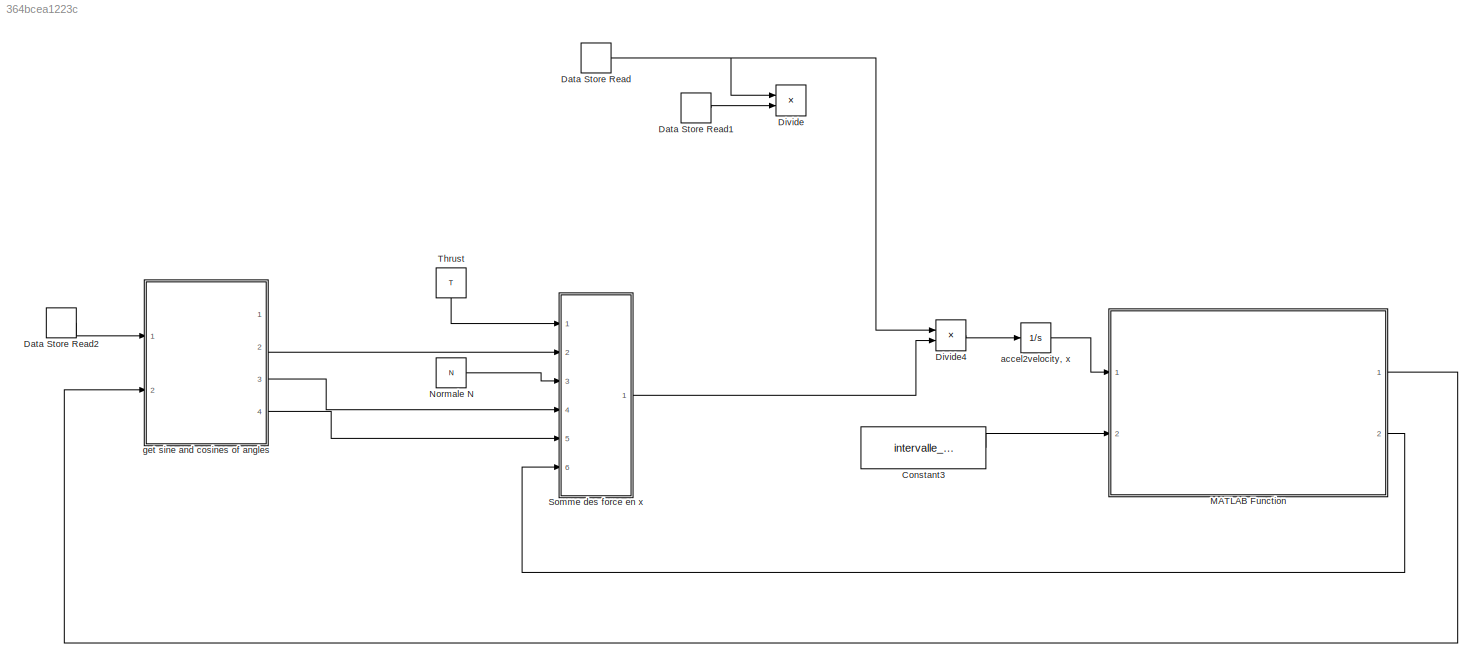
MODEL slx_364bcea1223c
KIND model
CONFIG AbsTol = auto
CONFIG FixedStep = .01
CONFIG MaxStep = auto
CONFIG MinStep = auto
CONFIG RelTol = 1e-3
CONFIG SampleTimeConstraint = Unconstrained
CONFIG Solver = ode4
CONFIG SolverMode = Auto
CONFIG SolverName = ode4
CONFIG StartTime = 0.0
CONFIG StopTime = 10.0
WORKSPACE source: MATLAB code (in-file)
WORKSPACE code: load test3.mat
WORKSPACE geometry = StructHullGeometry('Cedarville')
WORKSPACE code: m.InitialValue = 'geometry.m';
WORKSPACE code: L.InitialValue = 'geometry.L';
WORKSPACE code: LCG.InitialValue = 'geometry.LCG';
WORKSPACE code: VCG.InitialValue = 'geometry.VCG';
WORKSPACE code: b.InitialValue = 'geometry.b';
WORKSPACE code: beta.InitialValue = 'geometry.beta';
WORKSPACE code: a.InitialValue = 'geometry.a';
WORKSPACE code: f.InitialValue = 'geometry.f';
WORKSPACE code: epsilon.InitialValue = 'geometry.epsilon';
WORKSPACE code: g.InitialValue = '9.81';
WORKSPACE code: rho.InitialValue = '1000';
WORKSPACE code: clear geometry
BLOCK [Constant] Constant3
  Value = intervalle_tau
  VectorParams1D = off
BLOCK [DataStoreRead] Data Store Read
  DataStoreName = m
  Ports = [0, 1]
BLOCK [DataStoreRead] Data Store Read1
  DataStoreName = g
  Ports = [0, 1]
BLOCK [DataStoreRead] Data Store Read2
  DataStoreName = epsilon
  Ports = [0, 1]
BLOCK [Product] Divide
  InputSameDT = off
  Inputs = **
  OutDataTypeStr = Inherit: Inherit via internal rule
  Ports = [2, 1]
  RndMeth = Floor
  SaturateOnIntegerOverflow = off
BLOCK [Product] Divide4
  InputSameDT = off
  Inputs = /*
  OutDataTypeStr = Inherit: Inherit via internal rule
  Ports = [2, 1]
  RndMeth = Floor
  SaturateOnIntegerOverflow = off
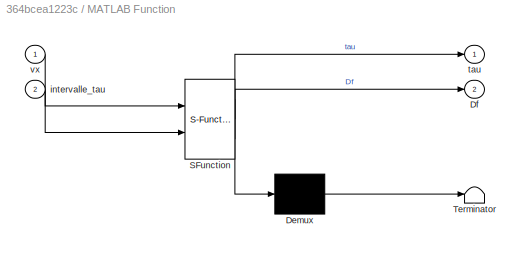
BLOCK [SubSystem] MATLAB Function
  ErrorFcn = Stateflow.Translate.translate
  PermitHierarchicalResolution = ExplicitOnly
  Ports = [2, 2]
  RequestExecContextInheritance = off
  SFBlockType = MATLAB Function
  TreatAsAtomicUnit = on
BLOCK [Demux] MATLAB Function/ Demux 
  Outputs = 1
  Ports = [1, 1]
BLOCK [S-Function] MATLAB Function/ SFunction 
  EnableBusSupport = on
  FunctionName = sf_sfun
  PortCounts = [2 3]
  Ports = [2, 3]
  Tag = Stateflow S-Function Simulink_Accel 2
BLOCK [Terminator] MATLAB Function/ Terminator 
BLOCK [Outport] MATLAB Function/Df
  IconDisplay = Port number
  Port = 2
BLOCK [Inport] MATLAB Function/intervalle_tau
  IconDisplay = Port number
  Port = 2
BLOCK [Outport] MATLAB Function/tau
  IconDisplay = Port number
BLOCK [Inport] MATLAB Function/vx
  IconDisplay = Port number
BLOCK [Constant] Normale N
  Value = N
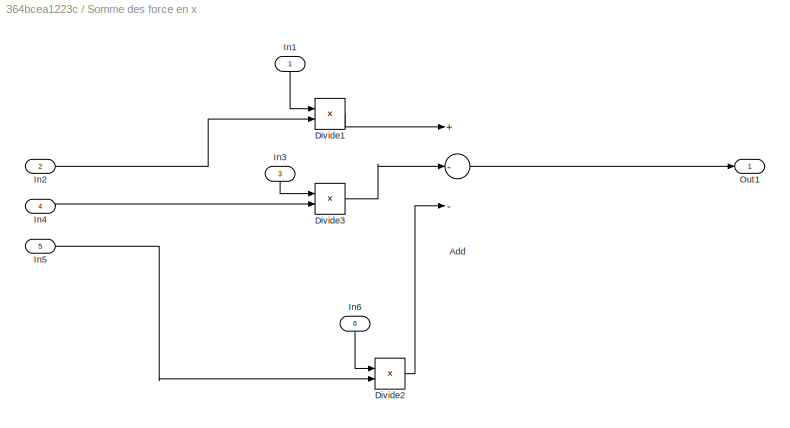
BLOCK [SubSystem] Somme des force en x
  Ports = [6, 1]
  RequestExecContextInheritance = off
BLOCK [Sum] Somme des force en x/Add
  InputSameDT = off
  Inputs = +--
  OutDataTypeStr = Inherit: Inherit via internal rule
  Ports = [3, 1]
  SaturateOnIntegerOverflow = off
BLOCK [Product] Somme des force en x/Divide1
  InputSameDT = off
  Inputs = **
  OutDataTypeStr = Inherit: Inherit via internal rule
  Ports = [2, 1]
  RndMeth = Floor
  SaturateOnIntegerOverflow = off
BLOCK [Product] Somme des force en x/Divide2
  InputSameDT = off
  Inputs = **
  OutDataTypeStr = Inherit: Inherit via internal rule
  Ports = [2, 1]
  RndMeth = Floor
  SaturateOnIntegerOverflow = off
BLOCK [Product] Somme des force en x/Divide3
  InputSameDT = off
  Inputs = **
  OutDataTypeStr = Inherit: Inherit via internal rule
  Ports = [2, 1]
  RndMeth = Floor
  SaturateOnIntegerOverflow = off
BLOCK [Inport] Somme des force en x/In1
  IconDisplay = Port number
BLOCK [Inport] Somme des force en x/In2
  IconDisplay = Port number
  Port = 2
BLOCK [Inport] Somme des force en x/In3
  IconDisplay = Port number
  Port = 3
BLOCK [Inport] Somme des force en x/In4
  IconDisplay = Port number
  Port = 4
BLOCK [Inport] Somme des force en x/In5
  IconDisplay = Port number
  Port = 5
BLOCK [Inport] Somme des force en x/In6
  IconDisplay = Port number
  Port = 6
BLOCK [Outport] Somme des force en x/Out1
  IconDisplay = Port number
BLOCK [Constant] Thrust
  Value = T
BLOCK [Integrator] accel2velocity, x
  InitialCondition = v0x
  Ports = [1, 1]
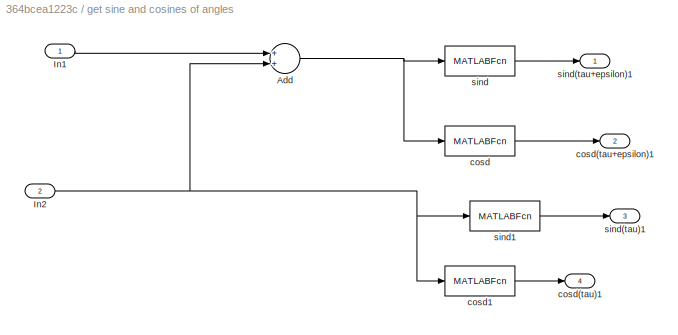
BLOCK [SubSystem] get sine and cosines of angles
  Ports = [2, 4]
  RequestExecContextInheritance = off
BLOCK [Sum] get sine and cosines of angles/Add
  InputSameDT = off
  OutDataTypeStr = Inherit: Inherit via internal rule
  Ports = [2, 1]
  SaturateOnIntegerOverflow = off
BLOCK [Inport] get sine and cosines of angles/In1
  IconDisplay = Port number
BLOCK [Inport] get sine and cosines of angles/In2
  IconDisplay = Port number
  Port = 2
BLOCK [MATLABFcn] get sine and cosines of angles/cosd
  MATLABFcn = cosd
  Ports = [1, 1]
BLOCK [Outport] get sine and cosines of angles/cosd(tau)1
  IconDisplay = Port number
  Port = 4
BLOCK [Outport] get sine and cosines of angles/cosd(tau+epsilon)1
  IconDisplay = Port number
  Port = 2
BLOCK [MATLABFcn] get sine and cosines of angles/cosd1
  MATLABFcn = cosd
  Ports = [1, 1]
BLOCK [MATLABFcn] get sine and cosines of angles/sind
  MATLABFcn = sind
  Ports = [1, 1]
BLOCK [Outport] get sine and cosines of angles/sind(tau)1
  IconDisplay = Port number
  Port = 3
BLOCK [Outport] get sine and cosines of angles/sind(tau+epsilon)1
  IconDisplay = Port number
BLOCK [MATLABFcn] get sine and cosines of angles/sind1
  MATLABFcn = sind
  Ports = [1, 1]
LINE Constant3:1 -> MATLAB Function:2
LINE Data Store Read1:1 -> Divide:2
LINE Data Store Read2:1 -> get sine and cosines of angles:1
NET Data Store Read:1 -> Divide4:1, Divide:1
LINE Divide4:1 -> accel2velocity, x:1
LINE MATLAB Function:1 -> get sine and cosines of angles:2
LINE MATLAB Function:2 -> Somme des force en x:6
LINE Normale N:1 -> Somme des force en x:3
LINE Somme des force en x/Add:1 -> Somme des force en x/Out1:1
LINE Somme des force en x/Divide1:1 -> Somme des force en x/Add:1
LINE Somme des force en x/Divide2:1 -> Somme des force en x/Add:3
LINE Somme des force en x/Divide3:1 -> Somme des force en x/Add:2
LINE Somme des force en x/In1:1 -> Somme des force en x/Divide1:1
LINE Somme des force en x/In2:1 -> Somme des force en x/Divide1:2
LINE Somme des force en x/In3:1 -> Somme des force en x/Divide3:1
LINE Somme des force en x/In4:1 -> Somme des force en x/Divide3:2
LINE Somme des force en x/In5:1 -> Somme des force en x/Divide2:2
LINE Somme des force en x/In6:1 -> Somme des force en x/Divide2:1
LINE Somme des force en x:1 -> Divide4:2
LINE Thrust:1 -> Somme des force en x:1
LINE accel2velocity, x:1 -> MATLAB Function:1
NET get sine and cosines of angles/Add:1 -> get sine and cosines of angles/cosd:1, get sine and cosines of angles/sind:1
LINE get sine and cosines of angles/In1:1 -> get sine and cosines of angles/Add:1
NET get sine and cosines of angles/In2:1 -> get sine and cosines of angles/Add:2, get sine and cosines of angles/cosd1:1, get sine and cosines of angles/sind1:1
LINE get sine and cosines of angles/cosd1:1 -> get sine and cosines of angles/cosd(tau)1:1
LINE get sine and cosines of angles/cosd:1 -> get sine and cosines of angles/cosd(tau+epsilon)1:1
LINE get sine and cosines of angles/sind1:1 -> get sine and cosines of angles/sind(tau)1:1
LINE get sine and cosines of angles/sind:1 -> get sine and cosines of angles/sind(tau+epsilon)1:1
LINE get sine and cosines of angles:2 -> Somme des force en x:2
LINE get sine and cosines of angles:3 -> Somme des force en x:4
LINE get sine and cosines of angles:4 -> Somme des force en x:5
note: NET lines group one-source signal fan-out (src -> all destinations, sorted); 1:1 wires keep LINE
CHART MATLAB Function states=1 transitions=1
  STATE_LABEL 'eML_blk_kernel()'
  STATE_LABEL "SCRIPT:\nfunction [tau,Df] = Call_Savitsky1964_statique_input_vitesse_fcn(vx,intervalle_tau)\n% fonction pour caller Savitsky1964_statique_input_vitesse_fcn\nglobal g\nglobal rho\nglobal m L LCG VCG b beta a f epsilon\n\n[tau,~,~,Df] = Savitsky1964_statique_input_vitesse_fcn(vx,intervalle_tau);\n%%\n%% Ajouter les variables globales\n% GlobalHullGeometry('SavitskyExample'); % load hull geometry\n% GlobalHull...<+482ch>"
